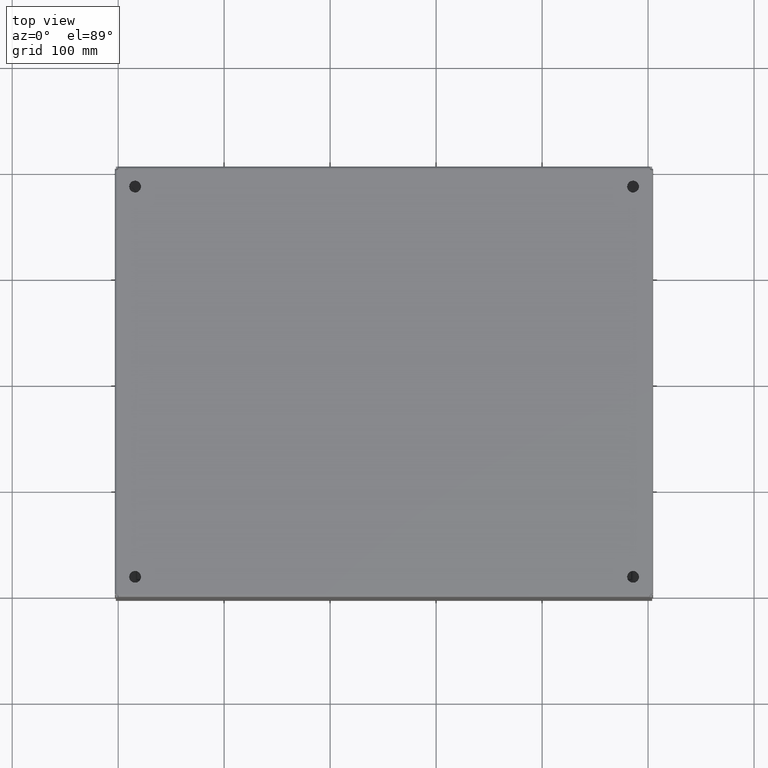
[diagram: clean part render]
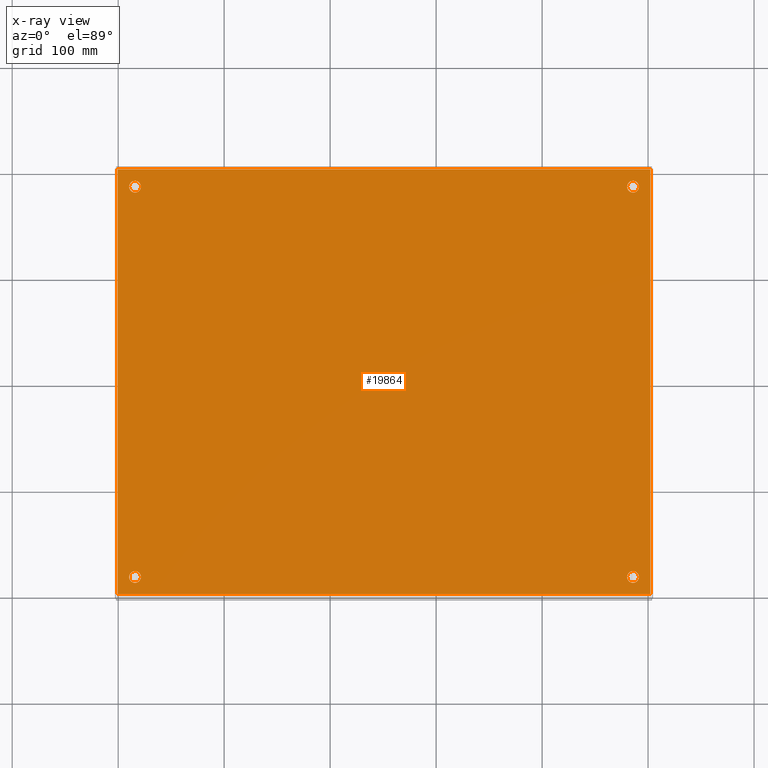
[diagram: x-ray — body ghosted, one internal face saturated and labeled with its STEP entity id]
A machine part, top view, then the same camera in x-ray: the body is ghosted and one INTERNAL B-rep face — a face not visible from any outside direction — is saturated and labeled: STEP entity #19864.
In plain terms, the highlighted planar face has unit normal (-0, 0, -1).
Its self-contained STEP definition (entity closure, byte-faithful):
#15003=CARTESIAN_POINT('',(0.531249999999996,0.750000000000002,0.074000000000000));
#15004=VERTEX_POINT('',#15003);
#15005=CARTESIAN_POINT('',(0.749999999999996,0.750000000000002,0.074000000000000));
#15006=DIRECTION('',(0.0,0.0,-1.0));
#15007=DIRECTION('',(1.0,0.0,0.0));
#15008=AXIS2_PLACEMENT_3D('',#15005,#15006,#15007);
#15009=CIRCLE('',#15008,0.218750000000000);
#15010=EDGE_CURVE('',#15004,#15004,#15009,.T.);
#15031=CARTESIAN_POINT('',(19.031249999999996,0.749999999999999,0.074000000000000));
#15032=VERTEX_POINT('',#15031);
#15033=CARTESIAN_POINT('',(19.249999999999996,0.749999999999999,0.074000000000000));
#15034=DIRECTION('',(0.0,0.0,-1.0));
#15035=DIRECTION('',(1.0,0.0,0.0));
#15036=AXIS2_PLACEMENT_3D('',#15033,#15034,#15035);
#15037=CIRCLE('',#15036,0.218750000000000);
#15038=EDGE_CURVE('',#15032,#15032,#15037,.T.);
#15059=CARTESIAN_POINT('',(0.531249999999994,15.250000000000000,0.074000000000000));
#15060=VERTEX_POINT('',#15059);
#15061=CARTESIAN_POINT('',(0.749999999999994,15.250000000000000,0.074000000000000));
#15062=DIRECTION('',(0.0,0.0,-1.0));
#15063=DIRECTION('',(1.0,0.0,0.0));
#15064=AXIS2_PLACEMENT_3D('',#15061,#15062,#15063);
#15065=CIRCLE('',#15064,0.218750000000000);
#15066=EDGE_CURVE('',#15060,#15060,#15065,.T.);
#15087=CARTESIAN_POINT('',(19.031249999999996,15.250000000000000,0.074000000000000));
#15088=VERTEX_POINT('',#15087);
#15089=CARTESIAN_POINT('',(19.249999999999996,15.250000000000000,0.074000000000000));
#15090=DIRECTION('',(0.0,0.0,-1.0));
#15091=DIRECTION('',(1.0,0.0,0.0));
#15092=AXIS2_PLACEMENT_3D('',#15089,#15090,#15091);
#15093=CIRCLE('',#15092,0.218750000000000);
#15094=EDGE_CURVE('',#15088,#15088,#15093,.T.);
#18602=CARTESIAN_POINT('',(19.894750000000002,15.882766839324365,0.074000000000000));
#18603=VERTEX_POINT('',#18602);
#18613=CARTESIAN_POINT('',(19.894750000000002,0.117233160675632,0.074000000000000));
#18614=VERTEX_POINT('',#18613);
#18615=CARTESIAN_POINT('',(19.894750000000002,0.117233160675632,0.074000000000000));
#18616=DIRECTION('',(0.0,1.0,0.0));
#18617=VECTOR('',#18616,15.765533678648733);
#18618=LINE('',#18615,#18617);
#18619=EDGE_CURVE('',#18614,#18603,#18618,.T.);
#18915=CARTESIAN_POINT('',(0.117233160675631,15.894750000000004,0.074000000000000));
#18916=VERTEX_POINT('',#18915);
#18926=CARTESIAN_POINT('',(19.882766839324365,15.894750000000004,0.074000000000000));
#18927=VERTEX_POINT('',#18926);
#18928=CARTESIAN_POINT('',(19.882766839324365,15.894750000000004,0.074000000000000));
#18929=DIRECTION('',(-1.0,0.0,0.0));
#18930=VECTOR('',#18929,19.765533678648733);
#18931=LINE('',#18928,#18930);
#18932=EDGE_CURVE('',#18927,#18916,#18931,.T.);
#19232=CARTESIAN_POINT('',(0.105249999999998,0.117233160675634,0.074000000000000));
#19233=VERTEX_POINT('',#19232);
#19243=CARTESIAN_POINT('',(0.105249999999993,15.882766839324365,0.074000000000000));
#19244=VERTEX_POINT('',#19243);
#19245=CARTESIAN_POINT('',(0.105249999999993,15.882766839324365,0.074000000000000));
#19246=DIRECTION('',(0.0,-1.0,0.0));
#19247=VECTOR('',#19246,15.765533678648731);
#19248=LINE('',#19245,#19247);
#19249=EDGE_CURVE('',#19244,#19233,#19248,.T.);
#19497=CARTESIAN_POINT('',(19.882766839324368,0.105249999999998,0.074000000000000));
#19498=VERTEX_POINT('',#19497);
#19508=CARTESIAN_POINT('',(0.117233160675633,0.105249999999998,0.074000000000000));
#19509=VERTEX_POINT('',#19508);
#19510=CARTESIAN_POINT('',(0.117233160675633,0.105249999999998,0.074000000000000));
#19511=DIRECTION('',(1.0,0.0,0.0));
#19512=VECTOR('',#19511,19.765533678648737);
#19513=LINE('',#19510,#19512);
#19514=EDGE_CURVE('',#19509,#19498,#19513,.T.);
#19801=CARTESIAN_POINT('',(0.062108078884576,0.062108078884576,0.074000000000000));
#19802=DIRECTION('',(0.0,0.0,-1.0));
#19803=DIRECTION('',(1.0,0.0,0.0));
#19804=AXIS2_PLACEMENT_3D('',#19801,#19802,#19803);
#19805=CIRCLE('',#19804,0.070000000000000);
#19806=EDGE_CURVE('',#19233,#19509,#19805,.T.);
#19819=CARTESIAN_POINT('',(10.000000000000002,8.0,0.074000000000000));
#19820=DIRECTION('',(0.0,0.0,1.0));
#19821=DIRECTION('',(1.0,0.0,0.0));
#19822=AXIS2_PLACEMENT_3D('',#19819,#19820,#19821);
#19823=PLANE('',#19822);
#19824=ORIENTED_EDGE('',*,*,#19514,.T.);
#19825=CARTESIAN_POINT('',(19.937891921115423,0.062108078884576,0.074000000000000));
#19826=DIRECTION('',(0.0,0.0,-1.0));
#19827=DIRECTION('',(1.0,0.0,0.0));
#19828=AXIS2_PLACEMENT_3D('',#19825,#19826,#19827);
#19829=CIRCLE('',#19828,0.070000000000000);
#19830=EDGE_CURVE('',#19498,#18614,#19829,.T.);
#19831=ORIENTED_EDGE('',*,*,#19830,.T.);
#19832=ORIENTED_EDGE('',*,*,#18619,.T.);
#19833=CARTESIAN_POINT('',(19.937891921115423,15.937891921115423,0.074000000000000));
#19834=DIRECTION('',(0.0,0.0,-1.0));
#19835=DIRECTION('',(1.0,0.0,0.0));
#19836=AXIS2_PLACEMENT_3D('',#19833,#19834,#19835);
#19837=CIRCLE('',#19836,0.070000000000000);
#19838=EDGE_CURVE('',#18603,#18927,#19837,.T.);
#19839=ORIENTED_EDGE('',*,*,#19838,.T.);
#19840=ORIENTED_EDGE('',*,*,#18932,.T.);
#19841=CARTESIAN_POINT('',(0.062108078884573,15.937891921115423,0.074000000000000));
#19842=DIRECTION('',(0.0,0.0,-1.0));
#19843=DIRECTION('',(1.0,0.0,0.0));
#19844=AXIS2_PLACEMENT_3D('',#19841,#19842,#19843);
#19845=CIRCLE('',#19844,0.070000000000000);
#19846=EDGE_CURVE('',#18916,#19244,#19845,.T.);
#19847=ORIENTED_EDGE('',*,*,#19846,.T.);
#19848=ORIENTED_EDGE('',*,*,#19249,.T.);
#19849=ORIENTED_EDGE('',*,*,#19806,.T.);
#19850=EDGE_LOOP('',(#19824,#19831,#19832,#19839,#19840,#19847,#19848,#19849));
#19851=FACE_OUTER_BOUND('',#19850,.T.);
#19852=ORIENTED_EDGE('',*,*,#15010,.T.);
#19853=EDGE_LOOP('',(#19852));
#19854=FACE_BOUND('',#19853,.T.);
#19855=ORIENTED_EDGE('',*,*,#15038,.T.);
#19856=EDGE_LOOP('',(#19855));
#19857=FACE_BOUND('',#19856,.T.);
#19858=ORIENTED_EDGE('',*,*,#15066,.T.);
#19859=EDGE_LOOP('',(#19858));
#19860=FACE_BOUND('',#19859,.T.);
#19861=ORIENTED_EDGE('',*,*,#15094,.T.);
#19862=EDGE_LOOP('',(#19861));
#19863=FACE_BOUND('',#19862,.T.);
#19864=ADVANCED_FACE('',(#19851,#19854,#19857,#19860,#19863),#19823,.T.);